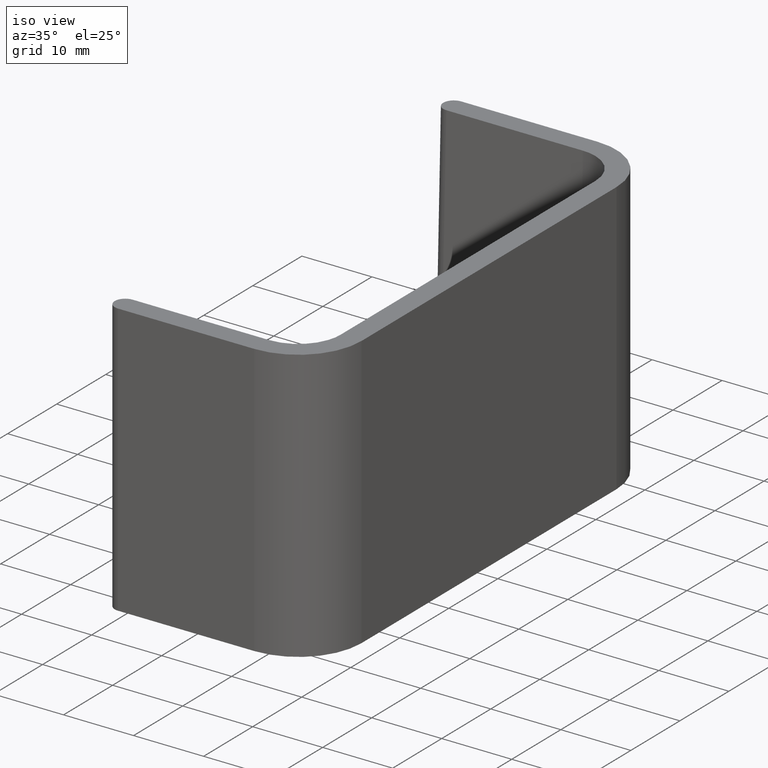
[diagram: clean part render]
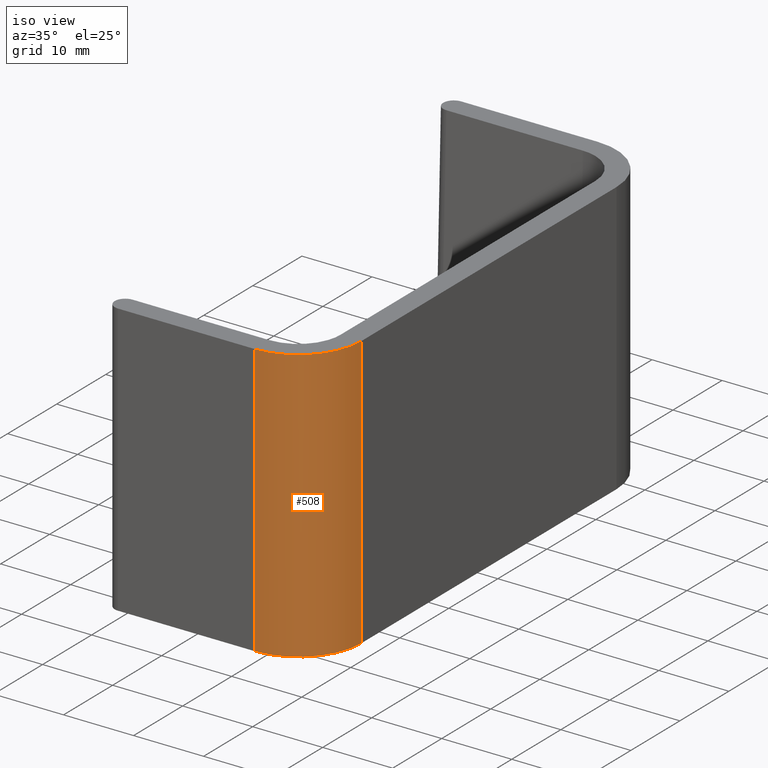
[diagram: same view with one face highlighted and labeled with its STEP entity id]
A machine part, iso view. The second image highlights one B-rep face of the part: STEP entity #508.
In plain terms, the highlighted cylindrical surface (partial cylindrical patch) has radius 9 mm, axis along (0, 0, 1).
Its self-contained STEP definition (entity closure, byte-faithful):
#58=LINE('',#999,#91);
#59=LINE('',#1001,#92);
#91=VECTOR('',#718,39.);
#92=VECTOR('',#721,39.);
#148=FACE_OUTER_BOUND('',#189,.T.);
#189=EDGE_LOOP('',(#458,#459,#460,#461));
#206=CIRCLE('',#554,9.);
#211=CIRCLE('',#563,9.);
#246=VERTEX_POINT('',#957);
#247=VERTEX_POINT('',#959);
#256=VERTEX_POINT('',#985);
#257=VERTEX_POINT('',#987);
#306=EDGE_CURVE('',#246,#247,#206,.T.);
#320=EDGE_CURVE('',#256,#257,#211,.T.);
#326=EDGE_CURVE('',#256,#247,#58,.T.);
#327=EDGE_CURVE('',#257,#246,#59,.T.);
#458=ORIENTED_EDGE('',*,*,#326,.T.);
#459=ORIENTED_EDGE('',*,*,#306,.F.);
#460=ORIENTED_EDGE('',*,*,#327,.F.);
#461=ORIENTED_EDGE('',*,*,#320,.F.);
#480=CYLINDRICAL_SURFACE('',#569,9.);
#508=ADVANCED_FACE('',(#148),#480,.T.);
#554=AXIS2_PLACEMENT_3D('',#960,#675,#676);
#563=AXIS2_PLACEMENT_3D('',#988,#702,#703);
#569=AXIS2_PLACEMENT_3D('',#1000,#719,#720);
#675=DIRECTION('center_axis',(0.,0.,1.));
#676=DIRECTION('ref_axis',(-1.2335811384724E-15,-1.,0.));
#702=DIRECTION('center_axis',(0.,0.,-1.));
#703=DIRECTION('ref_axis',(-1.2335811384724E-15,-1.,0.));
#718=DIRECTION('',(0.,0.,1.));
#719=DIRECTION('center_axis',(0.,0.,1.));
#720=DIRECTION('ref_axis',(-1.2335811384724E-15,-1.,0.));
#721=DIRECTION('',(0.,0.,1.));
#957=CARTESIAN_POINT('',(9.7499999999998,-35.0000000000001,19.5));
#959=CARTESIAN_POINT('',(18.7499999999998,-26.0000000000001,19.5));
#960=CARTESIAN_POINT('Origin',(9.74999999999981,-26.0000000000001,19.5));
#985=CARTESIAN_POINT('',(18.7499999999998,-26.0000000000001,-19.5));
#987=CARTESIAN_POINT('',(9.7499999999998,-35.0000000000001,-19.5));
#988=CARTESIAN_POINT('Origin',(9.74999999999981,-26.0000000000001,-19.5));
#999=CARTESIAN_POINT('',(18.7499999999998,-26.0000000000001,0.));
#1000=CARTESIAN_POINT('Origin',(9.74999999999981,-26.0000000000001,0.));
#1001=CARTESIAN_POINT('',(9.7499999999998,-35.0000000000001,0.));